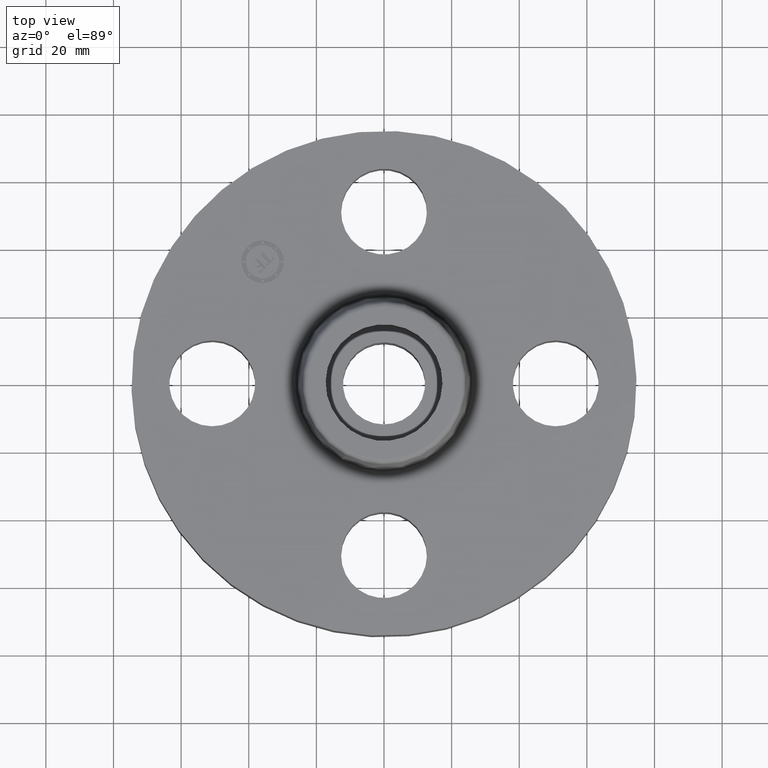
[diagram: clean part render]
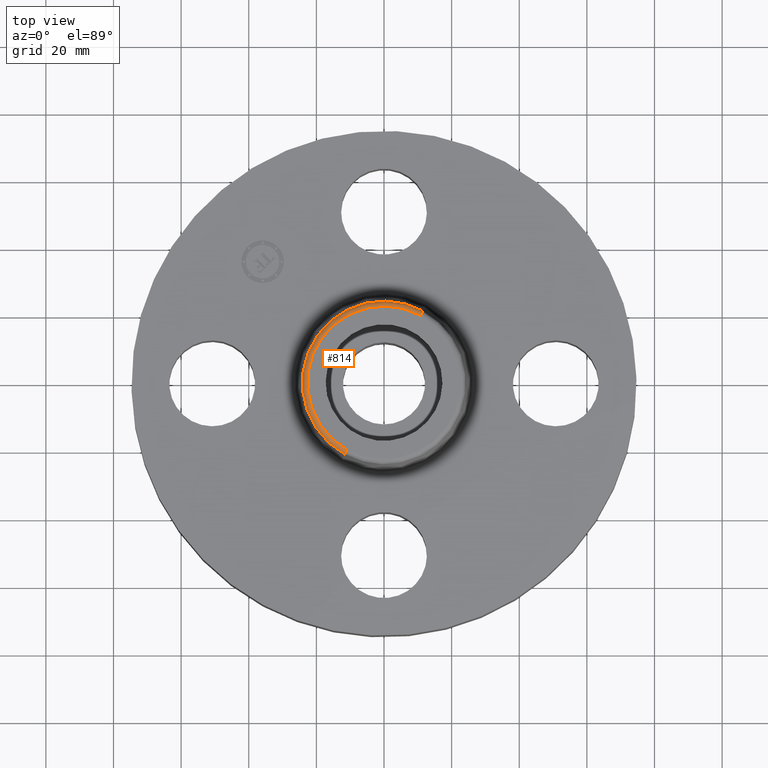
[diagram: same view with one face highlighted and labeled with its STEP entity id]
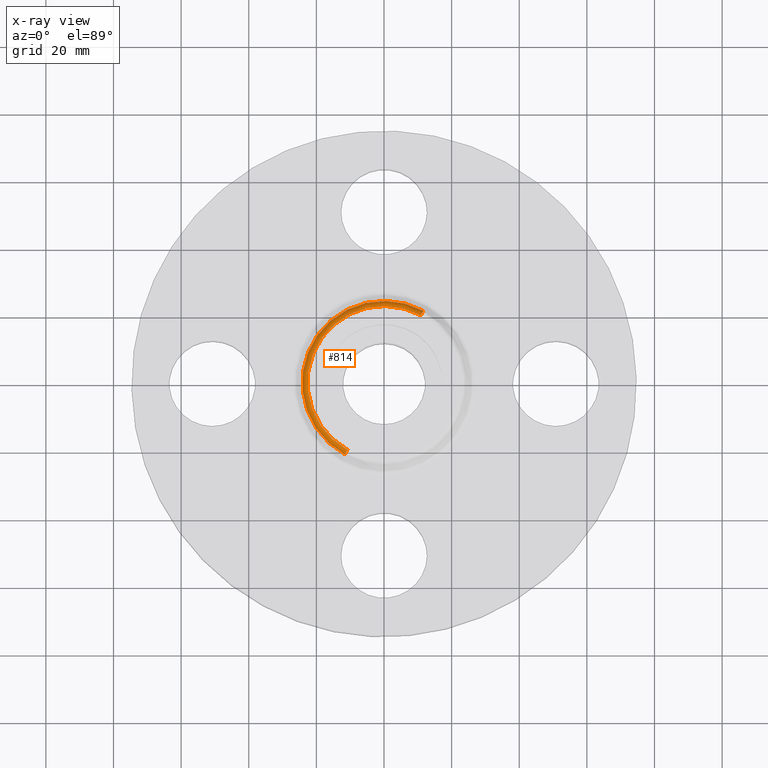
[diagram: x-ray of the same camera — body ghosted, the highlighted face saturated]
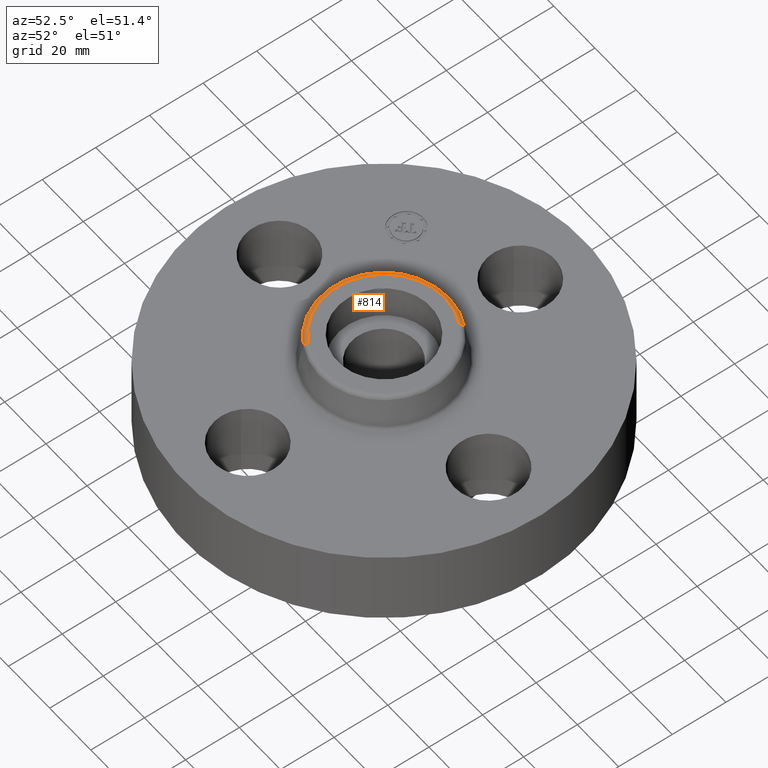
[diagram: same view with one face highlighted and labeled with its STEP entity id]
A machine part, top view. The second image highlights one B-rep face of the part: STEP entity #814.
The next image is the same camera in x-ray: the body ghosted, the highlighted face saturated — about 0% of this face is hidden behind the body in this view.
A second angle (auxiliary view) of the same face is appended — the face is thin or edge-on in the first view.
In plain terms, the highlighted toroidal blend (fillet) surface has major radius 22.6439 mm and minor (blend) radius 1.524 mm.
Its self-contained STEP definition (entity closure, byte-faithful):
#719=AXIS2_PLACEMENT_3D('Circle Axis2P3D',#717,#718,$) ;
#775=AXIS2_PLACEMENT_3D('Torus Axis2P3D',#772,#773,#774) ;
#779=AXIS2_PLACEMENT_3D('Circle Axis2P3D',#777,#778,$) ;
#793=AXIS2_PLACEMENT_3D('Circle Axis2P3D',#791,#792,$) ;
#805=AXIS2_PLACEMENT_3D('Circle Axis2P3D',#803,#804,$) ;
#695=CARTESIAN_POINT('Vertex',(0.455731847603,0.834211551431,1.57041889067)) ;
#702=CARTESIAN_POINT('Vertex',(-0.455731847603,-0.834211551431,1.57041889067)) ;
#717=CARTESIAN_POINT('Axis2P3D Location',(0.,0.,1.57041889067)) ;
#772=CARTESIAN_POINT('Axis2P3D Location',(0.,0.,1.56000000001)) ;
#777=CARTESIAN_POINT('Axis2P3D Location',(0.427403328359,0.782356544779,1.56000000001)) ;
#781=CARTESIAN_POINT('Vertex',(0.427403328359,0.782356544779,1.62000000001)) ;
#788=CARTESIAN_POINT('Vertex',(-0.427403328359,-0.782356544779,1.62000000001)) ;
#791=CARTESIAN_POINT('Axis2P3D Location',(-0.427403328359,-0.782356544779,1.56000000001)) ;
#803=CARTESIAN_POINT('Axis2P3D Location',(0.,0.,1.62000000001)) ;
#718=DIRECTION('Axis2P3D Direction',(0.,0.,-0.0393700787402)) ;
#773=DIRECTION('Axis2P3D Direction',(0.,0.,-0.0393700787402)) ;
#774=DIRECTION('Axis2P3D XDirection',(-0.0188750212049,-0.0345504945626,0.)) ;
#778=DIRECTION('Axis2P3D Direction',(-0.0345504945626,0.0188750212049,0.)) ;
#792=DIRECTION('Axis2P3D Direction',(0.0345504945626,-0.0188750212049,0.)) ;
#804=DIRECTION('Axis2P3D Direction',(0.,0.,-0.0393700787402)) ;
#809=ORIENTED_EDGE('',*,*,#721,.F.) ;
#810=ORIENTED_EDGE('',*,*,#795,.T.) ;
#811=ORIENTED_EDGE('',*,*,#807,.T.) ;
#812=ORIENTED_EDGE('',*,*,#783,.F.) ;
#814=ADVANCED_FACE('PartBody',(#813),#776,.T.) ;
#720=CIRCLE('generated circle',#719,0.95057899696) ;
#780=CIRCLE('generated circle',#779,0.0600000000002) ;
#794=CIRCLE('generated circle',#793,0.0600000000002) ;
#806=CIRCLE('generated circle',#805,0.891490531779) ;
#776=TOROIDAL_SURFACE('homeo Torus',#775,0.891490531779,0.0600000000002) ;
#721=EDGE_CURVE('',#703,#696,#720,.T.) ;
#783=EDGE_CURVE('',#696,#782,#780,.F.) ;
#795=EDGE_CURVE('',#703,#789,#794,.F.) ;
#807=EDGE_CURVE('',#789,#782,#806,.T.) ;
#808=EDGE_LOOP('',(#809,#810,#811,#812)) ;
#813=FACE_OUTER_BOUND('',#808,.T.) ;
#696=VERTEX_POINT('',#695) ;
#703=VERTEX_POINT('',#702) ;
#782=VERTEX_POINT('',#781) ;
#789=VERTEX_POINT('',#788) ;